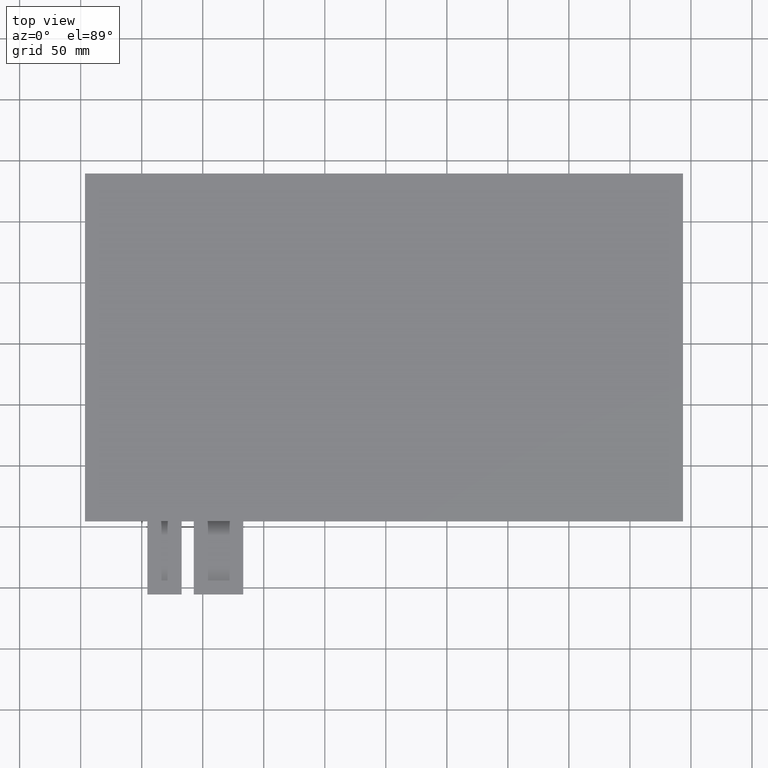
[diagram: clean part render]
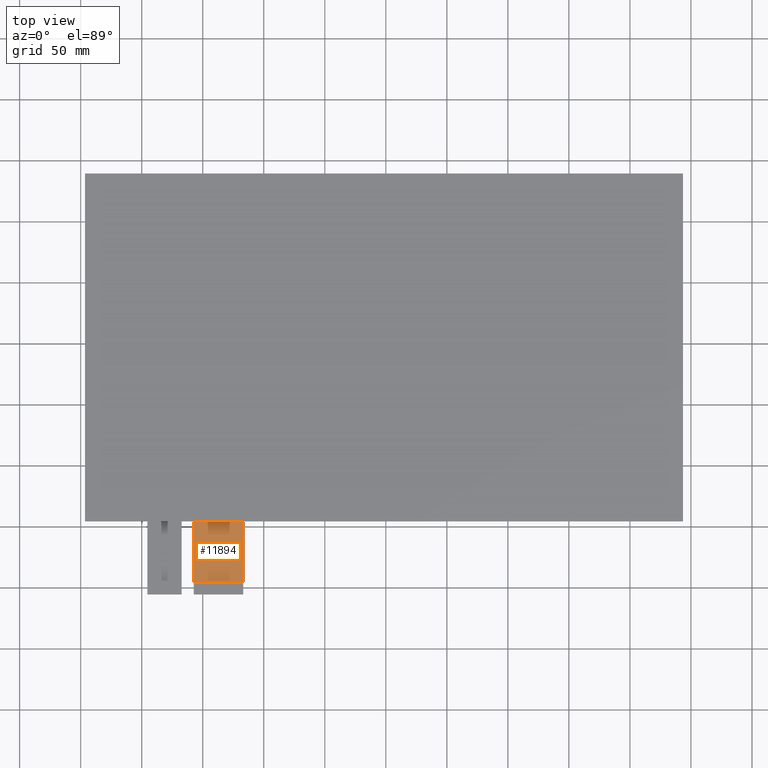
[diagram: same view with one face highlighted and labeled with its STEP entity id]
A machine part, top view. The second image highlights one B-rep face of the part: STEP entity #11894.
In plain terms, the highlighted planar face has unit normal (0, 0, 1).
Its self-contained STEP definition (entity closure, byte-faithful):
#604=PLANE('',#12490);
#1172=FACE_OUTER_BOUND('',#1740,.T.);
#1740=EDGE_LOOP('',(#11286,#11287,#11288,#11289));
#3406=LINE('',#18669,#5090);
#3408=LINE('',#18673,#5092);
#3419=LINE('',#18694,#5103);
#3420=LINE('',#18696,#5104);
#5090=VECTOR('',#15280,10.);
#5092=VECTOR('',#15284,10.);
#5103=VECTOR('',#15305,10.);
#5104=VECTOR('',#15308,10.);
#6238=VERTEX_POINT('',#18666);
#6239=VERTEX_POINT('',#18668);
#6240=VERTEX_POINT('',#18672);
#6245=VERTEX_POINT('',#18692);
#7918=EDGE_CURVE('',#6239,#6238,#3406,.T.);
#7920=EDGE_CURVE('',#6238,#6240,#3408,.T.);
#7931=EDGE_CURVE('',#6240,#6245,#3419,.T.);
#7932=EDGE_CURVE('',#6239,#6245,#3420,.T.);
#11286=ORIENTED_EDGE('',*,*,#7920,.T.);
#11287=ORIENTED_EDGE('',*,*,#7931,.T.);
#11288=ORIENTED_EDGE('',*,*,#7932,.F.);
#11289=ORIENTED_EDGE('',*,*,#7918,.T.);
#11894=ADVANCED_FACE('',(#1172),#604,.T.);
#12490=AXIS2_PLACEMENT_3D('',#18695,#15306,#15307);
#15280=DIRECTION('',(2.96059473233375E-16,-1.,0.));
#15284=DIRECTION('',(1.,0.,0.));
#15305=DIRECTION('',(0.,1.,0.));
#15306=DIRECTION('center_axis',(0.,0.,1.));
#15307=DIRECTION('ref_axis',(1.,0.,0.));
#15308=DIRECTION('',(1.,1.0875654118777E-16,0.));
#18666=CARTESIAN_POINT('',(-157.35,-195.49,-1.1));
#18668=CARTESIAN_POINT('',(-157.35,-145.49,-1.1));
#18669=CARTESIAN_POINT('',(-157.35,-145.49,-1.1));
#18672=CARTESIAN_POINT('',(-116.85,-195.49,-1.1));
#18673=CARTESIAN_POINT('',(-126.975,-195.49,-1.1));
#18692=CARTESIAN_POINT('',(-116.85,-145.49,-1.1));
#18694=CARTESIAN_POINT('',(-116.85,-205.49,-1.1));
#18695=CARTESIAN_POINT('Origin',(-137.1,-175.49,-1.1));
#18696=CARTESIAN_POINT('',(53.205,-145.49,-1.1));